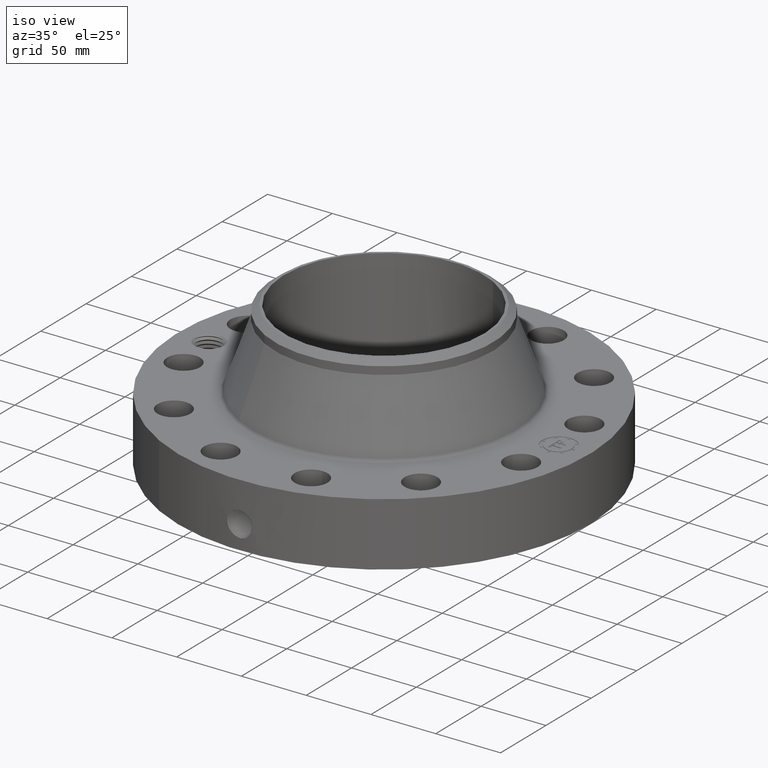
[diagram: clean part render]
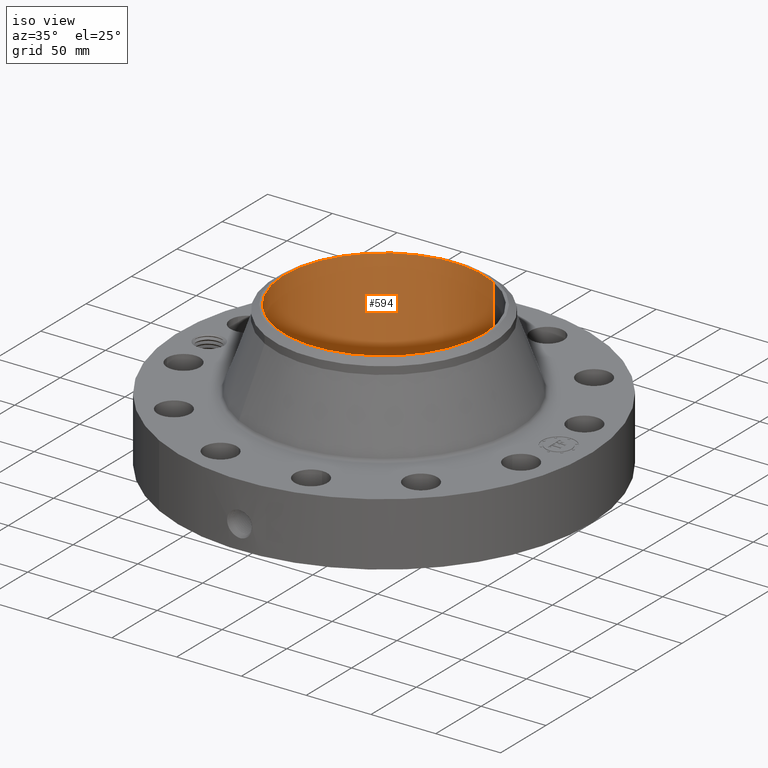
[diagram: same view with one face highlighted and labeled with its STEP entity id]
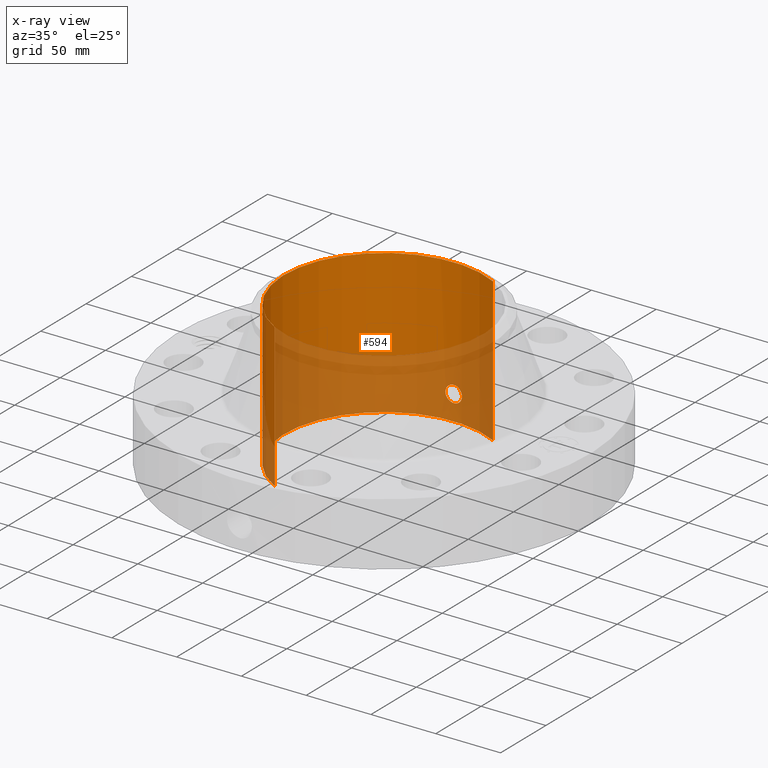
[diagram: x-ray of the same camera — body ghosted, the highlighted face saturated]
A machine part, iso view. The second image highlights one B-rep face of the part: STEP entity #594.
The next image is the same camera in x-ray: the body ghosted, the highlighted face saturated — about 44% of this face is hidden behind the body in this view.
In plain terms, the highlighted cylindrical surface (partial cylindrical patch) has radius 77.0255 mm, axis along (0, 0, -1).
Its self-contained STEP definition (entity closure, byte-faithful):
#232=AXIS2_PLACEMENT_3D('Cylinder Axis2P3D',#229,#230,#231) ;
#533=AXIS2_PLACEMENT_3D('Circle Axis2P3D',#531,#532,$) ;
#543=AXIS2_PLACEMENT_3D('Circle Axis2P3D',#541,#542,$) ;
#229=CARTESIAN_POINT('Axis2P3D Location',(0.,0.,2.18600000001)) ;
#238=CARTESIAN_POINT('Vertex',(1.45385794582,2.66126911894,4.37200000002)) ;
#240=CARTESIAN_POINT('Vertex',(-1.45385794582,-2.66126911894,4.37200000002)) ;
#243=CARTESIAN_POINT('Line Origine',(1.45385794582,2.66126911894,2.18600000001)) ;
#247=CARTESIAN_POINT('Vertex',(1.45385794582,2.66126911894,-5.87456592558E-015)) ;
#254=CARTESIAN_POINT('Vertex',(-1.45385794582,-2.66126911894,-5.87456592558E-015)) ;
#257=CARTESIAN_POINT('Line Origine',(-1.45385794582,-2.66126911894,2.18600000001)) ;
#531=CARTESIAN_POINT('Axis2P3D Location',(0.,0.,4.37200000002)) ;
#541=CARTESIAN_POINT('Axis2P3D Location',(0.,0.,-6.71378962923E-015)) ;
#553=CARTESIAN_POINT('Control Point',(0.219395640473,3.02455315758,0.869856384655)) ;
#554=CARTESIAN_POINT('Control Point',(0.206922263259,3.0254579539,0.892688748494)) ;
#555=CARTESIAN_POINT('Control Point',(0.191481219769,3.02651338018,0.91389387823)) ;
#556=CARTESIAN_POINT('Control Point',(0.17335290928,3.02763770348,0.932961593237)) ;
#557=CARTESIAN_POINT('Control Point',(0.112190548398,3.03088722865,0.982411066483)) ;
#558=CARTESIAN_POINT('Control Point',(0.0350754877588,3.03299839928,1.00595142333)) ;
#559=CARTESIAN_POINT('Control Point',(-0.0194612464698,3.0331580368,1.00761225249)) ;
#560=CARTESIAN_POINT('Control Point',(-0.12401732864,3.03084011998,0.982520807616)) ;
#561=CARTESIAN_POINT('Control Point',(-0.203044538276,3.02603181156,0.909724564623)) ;
#562=CARTESIAN_POINT('Control Point',(-0.232052740185,3.02365897928,0.863575457997)) ;
#563=CARTESIAN_POINT('Control Point',(-0.255813742475,3.02169783615,0.785393758225)) ;
#564=CARTESIAN_POINT('Control Point',(-0.248329979722,3.02231494673,0.705940839376)) ;
#565=CARTESIAN_POINT('Control Point',(-0.242095077591,3.02283692028,0.679302616399)) ;
#566=CARTESIAN_POINT('Control Point',(-0.232344480047,3.02361387207,0.653846307202)) ;
#567=CARTESIAN_POINT('Control Point',(-0.219395640473,3.02455315758,0.630143615351)) ;
#568=CARTESIAN_POINT('Vertex',(0.219395640473,3.02455315758,0.869856384655)) ;
#570=CARTESIAN_POINT('Vertex',(-0.219395640473,3.02455315758,0.630143615351)) ;
#574=CARTESIAN_POINT('Control Point',(-0.219395640473,3.02455315758,0.630143615351)) ;
#575=CARTESIAN_POINT('Control Point',(-0.206922263255,3.0254579539,0.607311251505)) ;
#576=CARTESIAN_POINT('Control Point',(-0.19148121976,3.02651338018,0.586106121764)) ;
#577=CARTESIAN_POINT('Control Point',(-0.173352909292,3.02763770348,0.567038406779)) ;
#578=CARTESIAN_POINT('Control Point',(-0.112190548405,3.03088722865,0.517588933526)) ;
#579=CARTESIAN_POINT('Control Point',(-0.0350754877585,3.03299839928,0.494048576673)) ;
#580=CARTESIAN_POINT('Control Point',(0.0194612464673,3.0331580368,0.492387747517)) ;
#581=CARTESIAN_POINT('Control Point',(0.124017328644,3.03084011998,0.51747919239)) ;
#582=CARTESIAN_POINT('Control Point',(0.203044538282,3.02603181156,0.590275435389)) ;
#583=CARTESIAN_POINT('Control Point',(0.232052740182,3.02365897928,0.636424542001)) ;
#584=CARTESIAN_POINT('Control Point',(0.255813742484,3.02169783614,0.714606241802)) ;
#585=CARTESIAN_POINT('Control Point',(0.248329979717,3.02231494673,0.794059160682)) ;
#586=CARTESIAN_POINT('Control Point',(0.24209507761,3.02283692028,0.820697383557)) ;
#587=CARTESIAN_POINT('Control Point',(0.23234448006,3.02361387207,0.846153692781)) ;
#588=CARTESIAN_POINT('Control Point',(0.219395640473,3.02455315758,0.869856384655)) ;
#230=DIRECTION('Axis2P3D Direction',(0.,0.,-0.0393700787402)) ;
#231=DIRECTION('Axis2P3D XDirection',(-0.0188750212049,-0.0345504945626,0.)) ;
#244=DIRECTION('Vector Direction',(0.,0.,-0.0393700787402)) ;
#258=DIRECTION('Vector Direction',(0.,0.,-0.0393700787402)) ;
#532=DIRECTION('Axis2P3D Direction',(0.,0.,-0.0393700787402)) ;
#542=DIRECTION('Axis2P3D Direction',(0.,0.,-0.0393700787402)) ;
#245=VECTOR('Line Direction',#244,0.0393700787402) ;
#259=VECTOR('Line Direction',#258,0.0393700787402) ;
#547=ORIENTED_EDGE('',*,*,#535,.F.) ;
#548=ORIENTED_EDGE('',*,*,#261,.T.) ;
#549=ORIENTED_EDGE('',*,*,#545,.T.) ;
#550=ORIENTED_EDGE('',*,*,#249,.F.) ;
#591=ORIENTED_EDGE('',*,*,#572,.F.) ;
#592=ORIENTED_EDGE('',*,*,#589,.F.) ;
#593=FACE_BOUND('',#590,.T.) ;
#594=ADVANCED_FACE('PartBody',(#551,#593),#233,.F.) ;
#552=B_SPLINE_CURVE_WITH_KNOTS('',5,(#553,#554,#555,#556,#557,#558,#559,#560,#561,#562,#563,#564,#565,#566,#567),.UNSPECIFIED.,.F.,.U.,(6,3,3,3,6),(0.,4.67567238075,14.0201641487,23.3700567093,28.223957182),.UNSPECIFIED.) ;
#573=B_SPLINE_CURVE_WITH_KNOTS('',5,(#574,#575,#576,#577,#578,#579,#580,#581,#582,#583,#584,#585,#586,#587,#588),.UNSPECIFIED.,.F.,.U.,(6,3,3,3,6),(0.,4.67567238213,14.0201641502,23.3700567115,28.2239571889),.UNSPECIFIED.) ;
#534=CIRCLE('generated circle',#533,3.03250000001) ;
#544=CIRCLE('generated circle',#543,3.03250000001) ;
#233=CYLINDRICAL_SURFACE('generated cylinder',#232,3.03250000001) ;
#249=EDGE_CURVE('',#239,#248,#246,.T.) ;
#261=EDGE_CURVE('',#241,#255,#260,.T.) ;
#535=EDGE_CURVE('',#241,#239,#534,.T.) ;
#545=EDGE_CURVE('',#255,#248,#544,.T.) ;
#572=EDGE_CURVE('',#569,#571,#552,.T.) ;
#589=EDGE_CURVE('',#571,#569,#573,.T.) ;
#546=EDGE_LOOP('',(#547,#548,#549,#550)) ;
#590=EDGE_LOOP('',(#591,#592)) ;
#551=FACE_OUTER_BOUND('',#546,.T.) ;
#246=LINE('Line',#243,#245) ;
#260=LINE('Line',#257,#259) ;
#239=VERTEX_POINT('',#238) ;
#241=VERTEX_POINT('',#240) ;
#248=VERTEX_POINT('',#247) ;
#255=VERTEX_POINT('',#254) ;
#569=VERTEX_POINT('',#568) ;
#571=VERTEX_POINT('',#570) ;